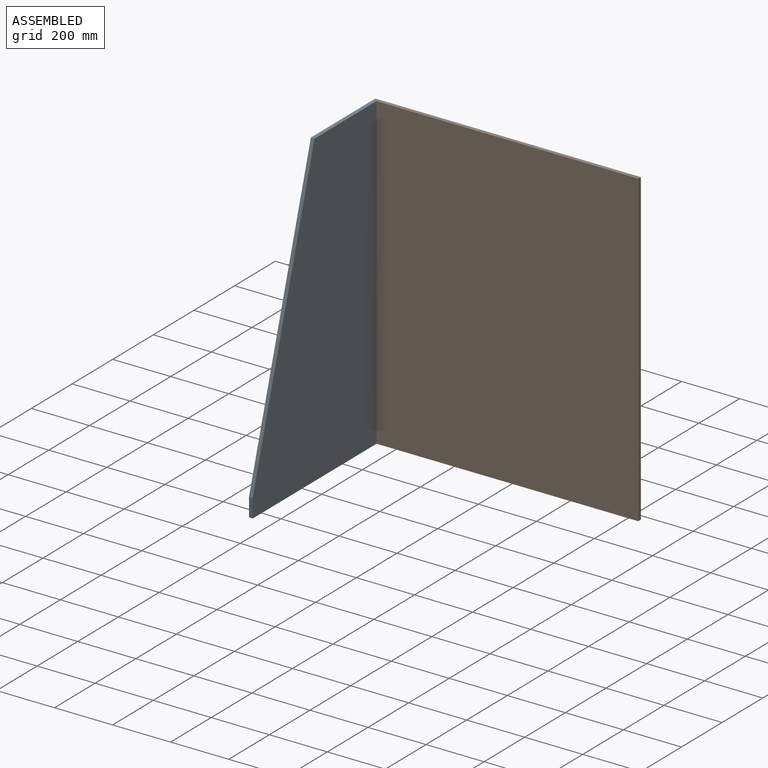
[diagram: assembled view]
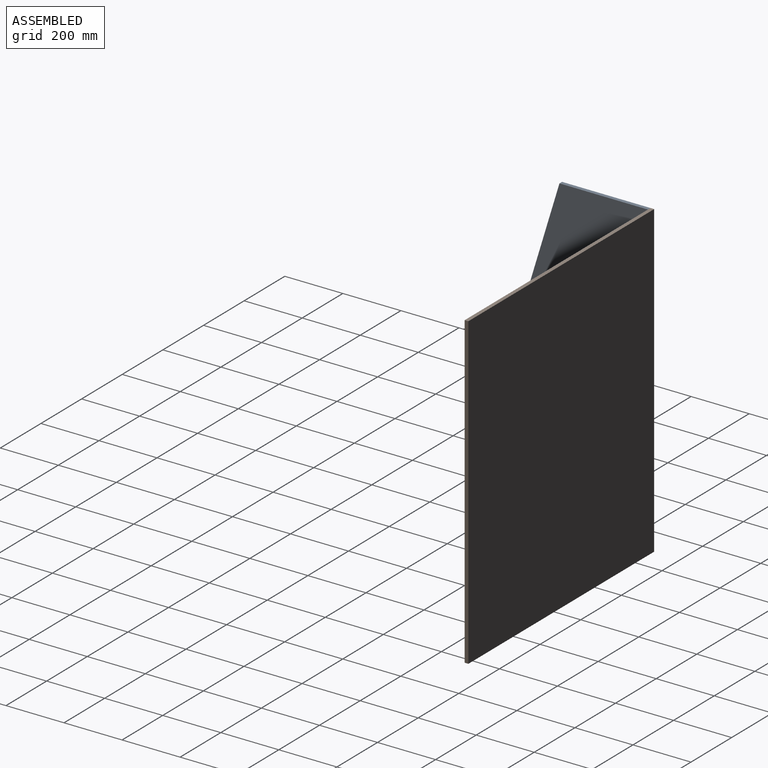
[diagram: assembled view, second angle]
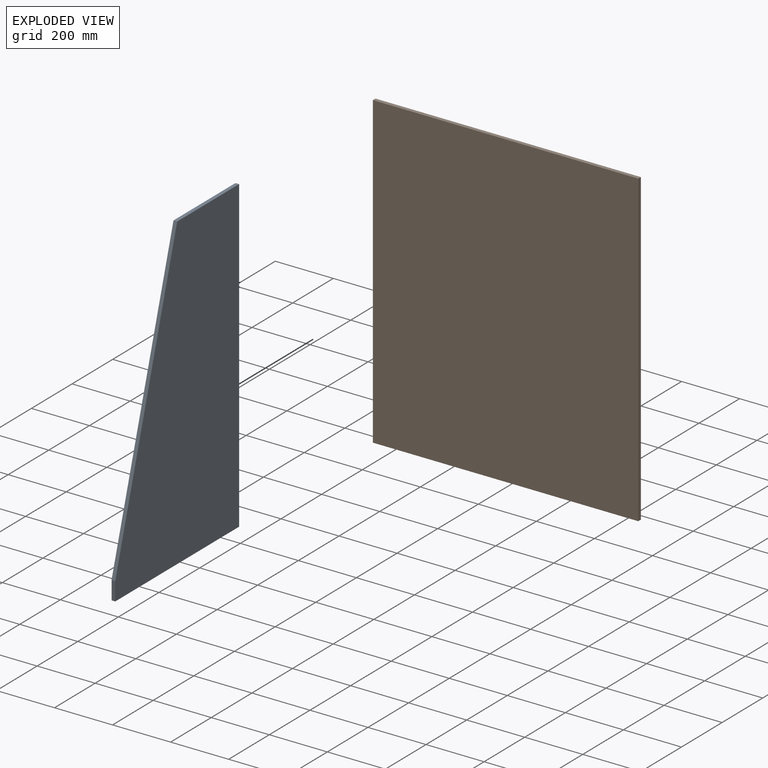
[diagram: exploded view]
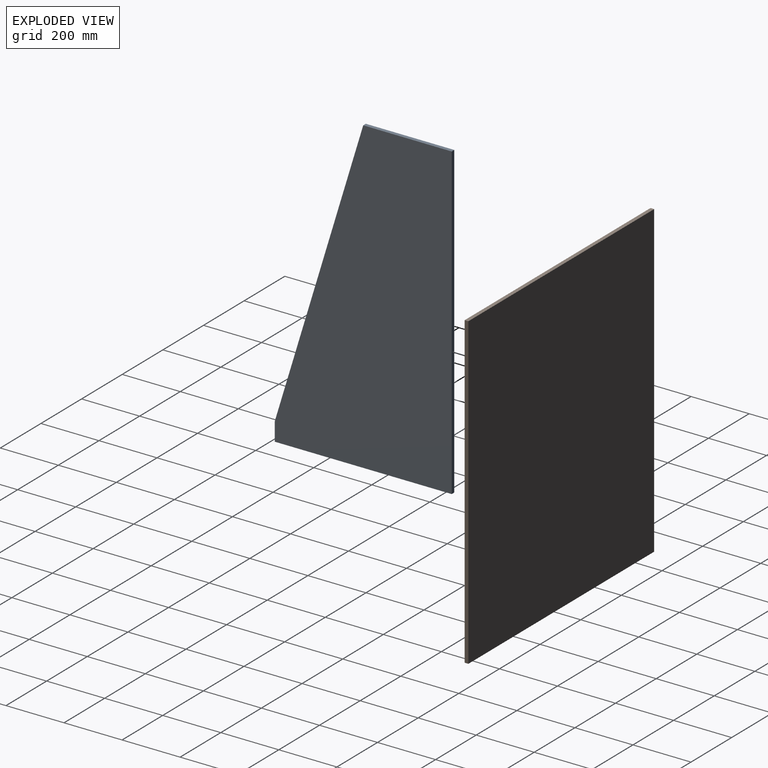
[diagram: exploded view, second angle]
ASSEMBLY  parts=2 mates=3
PART A: 7 faces, bbox 12.7x609.6x1066.8 mm
  f0: plane 1066.8x12.7mm, normal (0,1,0), area 13548.4mm2, adj f1,f4,f5,f6
  f1: plane 304.8x12.7mm, normal (0,0,1), area 3871mm2, adj f0,f2,f5,f6
  f2: plane 1003.3x304.8mm, normal (0,-0.96,0.29), area 13316.9mm2, adj f1,f3,f5,f6
  f3: plane 63.5x12.7mm, normal (0,-1,0), area 806.5mm2, adj f2,f4,f5,f6
  f4: plane 609.6x12.7mm, normal (0,0,-1), area 7741.9mm2, adj f0,f3,f5,f6
  f5: plane 1066.8x609.6mm, normal (1,0,0), area 497418.4mm2, adj f0,f1,f2,f3,f4
  f6: plane 1066.8x609.6mm, normal (-1,0,0), area 497418.4mm2, adj f0,f1,f2,f3,f4
PART B: 6 faces, bbox 914.4x12.7x1066.8 mm
  f0: plane 914.4x12.7mm, normal (0,0,1), area 11612.9mm2, adj f1,f3,f4,f5
  f1: plane 1066.8x12.7mm, normal (-1,0,0), area 13548.4mm2, adj f0,f2,f4,f5
  f2: plane 914.4x12.7mm, normal (0,0,-1), area 11612.9mm2, adj f1,f3,f4,f5
  f3: plane 1066.8x12.7mm, normal (1,0,0), area 13548.4mm2, adj f0,f2,f4,f5
  f4: plane 1066.8x914.4mm, normal (0,-1,0), area 975481.9mm2, adj f0,f1,f2,f3
  f5: plane 1066.8x914.4mm, normal (0,1,0), area 975481.9mm2, adj f0,f1,f2,f3
PLACE A t=(-450.85,-75.16,61.16)mm
PLACE B t=(-450.85,-62.46,61.16)mm
MATE planar A.f0 <-> B.f4  axis (0,1,0) through (-444.5,-75.16,594.56)mm
MATE planar B.f2 <-> A.f4  axis (0,0,-1) through (6.35,-68.81,61.16)mm
MATE planar A.f6 <-> B.f1  axis (-1,0,0) through (-450.85,-317.5,533.4)mm
